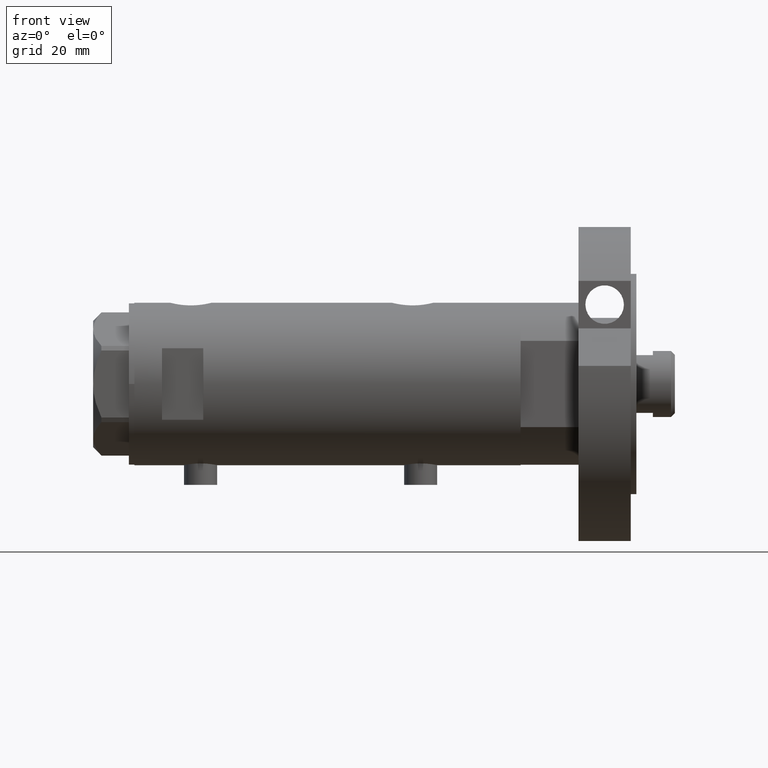
[diagram: clean part render]
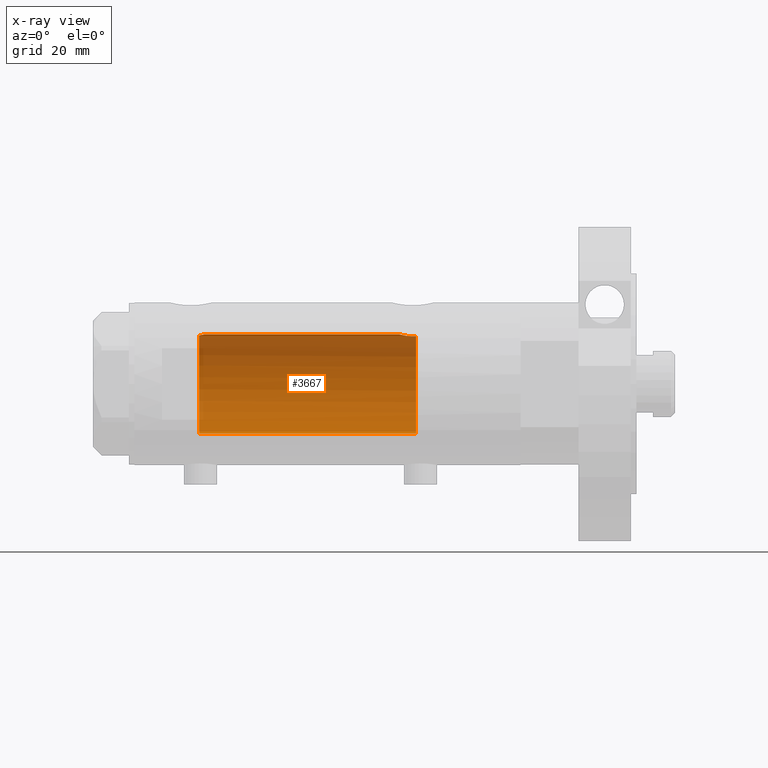
[diagram: x-ray — body ghosted, one internal face saturated and labeled with its STEP entity id]
A machine part, front view, then the same camera in x-ray: the body is ghosted and one INTERNAL B-rep face — a face not visible from any outside direction — is saturated and labeled: STEP entity #3667.
In plain terms, the highlighted cylindrical surface (partial cylindrical patch) has radius 18 mm, axis along (1, 0, -0).
Its self-contained STEP definition (entity closure, byte-faithful):
#47 = ORIENTED_EDGE ( 'NONE', *, *, #5833, .T. ) ;
#53 = DIRECTION ( 'NONE',  ( 1.000000000000000000, 0.000000000000000000, 0.000000000000000000 ) ) ;
#159 = CARTESIAN_POINT ( 'NONE',  ( 17.99716691696285409, 0.3685254503903831469, -26.04545042928659981 ) ) ;
#167 = ORIENTED_EDGE ( 'NONE', *, *, #2093, .T. ) ;
#193 = CARTESIAN_POINT ( 'NONE',  ( 17.33262691996380767, 4.855935766715060886, -31.37488940890202116 ) ) ;
#218 = CARTESIAN_POINT ( 'NONE',  ( 17.53642083926971651, 4.065376572064631766, -28.20260027543615777 ) ) ;
#251 = CARTESIAN_POINT ( 'NONE',  ( -18.00000000000000000, 0.000000000000000000, -32.09999999999998721 ) ) ;
#562 = ORIENTED_EDGE ( 'NONE', *, *, #5678, .F. ) ;
#652 = CARTESIAN_POINT ( 'NONE',  ( 17.33118376015917761, 4.861110225087390546, -30.63112109378173642 ) ) ;
#743 = CARTESIAN_POINT ( 'NONE',  ( 17.83051055968251219, 2.469307448774137104, -26.70420614498791778 ) ) ;
#786 = CARTESIAN_POINT ( 'NONE',  ( 17.95540531162507136, 1.279032093992328756, 44.90250861430337892 ) ) ;
#959 = B_SPLINE_CURVE_WITH_KNOTS ( 'NONE', 3,
 ( #1117, #3082, #159, #5845, #4918, #2597, #5908, #4378, #743, #2631, #4410, #2995, #4051, #5936, #2510, #218, #2108, #2048, #5817, #1585, #3463, #4886, #652, #2541, #193, #2084, #3985 ),
 .UNSPECIFIED., .F., .F.,
 ( 4, 2, 2, 2, 2, 2, 2, 2, 2, 2, 1, 2, 2, 4 ),
 ( 0.01528157848519460724, 0.01583467956029641077, 0.01638778063539821778, 0.01749398278560182138, 0.01804708386070362491, 0.01860018493580542845, 0.01915328601090723198, 0.01970638708600903552, 0.02081258923621265300, 0.02136569031131445653, 0.02191879138641626354, 0.02247189246151807054, 0.02302499353661987755, 0.02413119568682350197 ),
 .UNSPECIFIED. ) ;
#1074 = CARTESIAN_POINT ( 'NONE',  ( 0.000000000000000000, 0.000000000000000000, 70.09999999999999432 ) ) ;
#1117 = CARTESIAN_POINT ( 'NONE',  ( 18.00000000000000000, 5.958021437579254357E-16, -26.03499999999998948 ) ) ;
#1137 = CARTESIAN_POINT ( 'NONE',  ( 17.58783030962034388, 3.829911878881825160, 46.59999999999998721 ) ) ;
#1154 = DIRECTION ( 'NONE',  ( -0.000000000000000000, -0.000000000000000000, -1.000000000000000000 ) ) ;
#1307 = CARTESIAN_POINT ( 'NONE',  ( 18.00000000000000000, 0.000000000000000000, 44.73499999999999233 ) ) ;
#1334 = CARTESIAN_POINT ( 'NONE',  ( 17.89217382667230538, 1.974183297225218015, 45.14981302266163965 ) ) ;
#1482 = DIRECTION ( 'NONE',  ( 0.000000000000000000, 0.000000000000000000, 1.000000000000000000 ) ) ;
#1543 = EDGE_LOOP ( 'NONE', ( #2321, #3641, #167, #47, #5881, #562 ) ) ;
#1570 = CYLINDRICAL_SURFACE ( 'NONE', #5201, 18.00000000000000000 ) ;
#1585 = CARTESIAN_POINT ( 'NONE',  ( 17.38237957915197285, 4.675094569549008483, -29.54138980228257338 ) ) ;
#1680 = CARTESIAN_POINT ( 'NONE',  ( 18.00000000000000000, 2.204364238465235033E-15, 70.09999999999999432 ) ) ;
#1733 = CARTESIAN_POINT ( 'NONE',  ( 17.91007218376326193, 1.805463612197654166, 45.07866376881659676 ) ) ;
#1827 = CARTESIAN_POINT ( 'NONE',  ( 17.85293122918850273, 2.302201220737755794, 45.31031080804816469 ) ) ;
#2048 = CARTESIAN_POINT ( 'NONE',  ( 17.43128843254318028, 4.489613141718952427, -29.01700003713170162 ) ) ;
#2084 = CARTESIAN_POINT ( 'NONE',  ( 17.34671983132639284, 4.806279138776324622, -31.74012329268312271 ) ) ;
#2093 = EDGE_CURVE ( 'NONE', #6075, #3827, #5385, .T. ) ;
#2108 = CARTESIAN_POINT ( 'NONE',  ( 17.49030773641652914, 4.256160900234553957, -28.51469509681785652 ) ) ;
#2119 = CARTESIAN_POINT ( 'NONE',  ( -18.00000000000000000, 0.000000000000000000, 46.59999999999999432 ) ) ;
#2203 = CARTESIAN_POINT ( 'NONE',  ( 18.00000000000000000, 5.958021437579254357E-16, -26.03499999999998948 ) ) ;
#2321 = ORIENTED_EDGE ( 'NONE', *, *, #5294, .F. ) ;
#2332 = CARTESIAN_POINT ( 'NONE',  ( 17.83158514913445103, 2.461498934476296085, 45.39965995681277633 ) ) ;
#2364 = B_SPLINE_CURVE_WITH_KNOTS ( 'NONE', 3,
 ( #6071, #3656, #4082, #5017, #4606, #2332, #1827, #1334, #1733, #3711, #786, #4565, #4116, #3680 ),
 .UNSPECIFIED., .F., .F.,
 ( 4, 2, 2, 2, 2, 2, 4 ),
 ( 0.02614985543880328500, 0.02725214354003946404, 0.02780328759065755356, 0.02835443164127564308, 0.02890557569189372913, 0.02945671974251181865, 0.03055900784374799770 ),
 .UNSPECIFIED. ) ;
#2378 = DIRECTION ( 'NONE',  ( -1.000000000000000000, 0.000000000000000000, 0.000000000000000000 ) ) ;
#2467 = FACE_OUTER_BOUND ( 'NONE', #1543, .T. ) ;
#2510 = CARTESIAN_POINT ( 'NONE',  ( 17.61032289555864239, 3.726910670425180427, -27.76756985850230564 ) ) ;
#2541 = CARTESIAN_POINT ( 'NONE',  ( 17.32928165965088141, 4.867855194001449171, -30.81899018256649114 ) ) ;
#2597 = CARTESIAN_POINT ( 'NONE',  ( 17.94405978035183935, 1.463580074031385569, -26.24553017623723861 ) ) ;
#2631 = CARTESIAN_POINT ( 'NONE',  ( 17.78478726694684298, 2.779555353823086161, -26.90297143050465323 ) ) ;
#2658 = VECTOR ( 'NONE', #1154, 1000.000000000000000 ) ;
#2716 = AXIS2_PLACEMENT_3D ( 'NONE', #2924, #1482, #53 ) ;
#2748 = DIRECTION ( 'NONE',  ( -0.000000000000000000, -0.000000000000000000, -1.000000000000000000 ) ) ;
#2924 = CARTESIAN_POINT ( 'NONE',  ( 0.000000000000000000, 0.000000000000000000, 46.59999999999999432 ) ) ;
#2963 = DIRECTION ( 'NONE',  ( -1.000000000000000000, 0.000000000000000000, 0.000000000000000000 ) ) ;
#2995 = CARTESIAN_POINT ( 'NONE',  ( 17.71174132276681590, 3.211689381115077513, -27.24121359250870000 ) ) ;
#3082 = CARTESIAN_POINT ( 'NONE',  ( 17.99999999999999645, 0.1844036484100888829, -26.03499999999998238 ) ) ;
#3097 = VERTEX_POINT ( 'NONE', #251 ) ;
#3132 = AXIS2_PLACEMENT_3D ( 'NONE', #4973, #4854, #2963 ) ;
#3463 = CARTESIAN_POINT ( 'NONE',  ( 17.35631194664785681, 4.771042759406570077, -29.89667763205954287 ) ) ;
#3641 = ORIENTED_EDGE ( 'NONE', *, *, #4272, .F. ) ;
#3656 = CARTESIAN_POINT ( 'NONE',  ( 17.63704841537101231, 3.603891093161669890, 46.31145343596539732 ) ) ;
#3667 = ADVANCED_FACE ( 'NONE', ( #2467 ), #1570, .F. ) ;
#3680 = CARTESIAN_POINT ( 'NONE',  ( 18.00000000000000000, 0.000000000000000000, 44.73499999999999233 ) ) ;
#3711 = CARTESIAN_POINT ( 'NONE',  ( 17.94167814235965608, 1.458276351914867375, 44.95504464479716233 ) ) ;
#3827 = VERTEX_POINT ( 'NONE', #2119 ) ;
#3985 = CARTESIAN_POINT ( 'NONE',  ( 17.37157951943346745, 4.714681855650494136, -32.09999999999999432 ) ) ;
#4051 = CARTESIAN_POINT ( 'NONE',  ( 17.68656644271517209, 3.347025706529860312, -27.36453774950910045 ) ) ;
#4082 = CARTESIAN_POINT ( 'NONE',  ( 17.68814035493779357, 3.348626323852638365, 46.05183600219630335 ) ) ;
#4116 = CARTESIAN_POINT ( 'NONE',  ( 18.00000000000001066, 0.3728474842072352358, 44.73499999999999233 ) ) ;
#4142 = VECTOR ( 'NONE', #2748, 1000.000000000000000 ) ;
#4170 = LINE ( 'NONE', #5544, #4142 ) ;
#4272 = EDGE_CURVE ( 'NONE', #6075, #4310, #2364, .T. ) ;
#4310 = VERTEX_POINT ( 'NONE', #1307 ) ;
#4335 = DIRECTION ( 'NONE',  ( -0.000000000000000000, -0.000000000000000000, -1.000000000000000000 ) ) ;
#4378 = CARTESIAN_POINT ( 'NONE',  ( 17.85236636886077832, 2.306694554785103435, -26.61264586133006560 ) ) ;
#4410 = CARTESIAN_POINT ( 'NONE',  ( 17.76085061188610581, 2.927954048074872251, -27.01043039029092441 ) ) ;
#4429 = EDGE_CURVE ( 'NONE', #3097, #5628, #5510, .T. ) ;
#4565 = CARTESIAN_POINT ( 'NONE',  ( 17.98843015915091570, 0.7391836159806497442, 44.77731130524778536 ) ) ;
#4606 = CARTESIAN_POINT ( 'NONE',  ( 17.78617492856930227, 2.770629413254892537, 45.59682049650071178 ) ) ;
#4854 = DIRECTION ( 'NONE',  ( 0.000000000000000000, 0.000000000000000000, -1.000000000000000000 ) ) ;
#4886 = CARTESIAN_POINT ( 'NONE',  ( 17.34085862114803689, 4.826483754267692383, -30.26145238513612057 ) ) ;
#4918 = CARTESIAN_POINT ( 'NONE',  ( 17.97733715731490989, 0.9209699998971184742, -26.11935966604423243 ) ) ;
#4973 = CARTESIAN_POINT ( 'NONE',  ( 0.000000000000000000, 0.000000000000000000, -32.09999999999998721 ) ) ;
#5017 = CARTESIAN_POINT ( 'NONE',  ( 17.76196254920472128, 2.921230608637938264, 45.70535341986154521 ) ) ;
#5201 = AXIS2_PLACEMENT_3D ( 'NONE', #1074, #4335, #2378 ) ;
#5294 = EDGE_CURVE ( 'NONE', #4310, #5695, #5389, .T. ) ;
#5349 = CARTESIAN_POINT ( 'NONE',  ( 17.37157951943346745, 4.714681855650494136, -32.09999999999999432 ) ) ;
#5385 = CIRCLE ( 'NONE', #2716, 18.00000000000000000 ) ;
#5389 = LINE ( 'NONE', #1680, #2658 ) ;
#5510 = CIRCLE ( 'NONE', #3132, 18.00000000000000000 ) ;
#5544 = CARTESIAN_POINT ( 'NONE',  ( -18.00000000000000000, 0.000000000000000000, 70.09999999999999432 ) ) ;
#5628 = VERTEX_POINT ( 'NONE', #5349 ) ;
#5678 = EDGE_CURVE ( 'NONE', #5695, #5628, #959, .T. ) ;
#5695 = VERTEX_POINT ( 'NONE', #2203 ) ;
#5817 = CARTESIAN_POINT ( 'NONE',  ( 17.41328271218089796, 4.558641711475907243, -29.19087254718660418 ) ) ;
#5833 = EDGE_CURVE ( 'NONE', #3827, #3097, #4170, .T. ) ;
#5845 = CARTESIAN_POINT ( 'NONE',  ( 17.98587882862718601, 0.7362002489460850452, -26.08746722239206406 ) ) ;
#5881 = ORIENTED_EDGE ( 'NONE', *, *, #4429, .T. ) ;
#5908 = CARTESIAN_POINT ( 'NONE',  ( 17.91189082287941403, 1.809824880389074186, -26.36912370284670004 ) ) ;
#5936 = CARTESIAN_POINT ( 'NONE',  ( 17.63589737371339083, 3.604488512479873119, -27.62742655266249514 ) ) ;
#6071 = CARTESIAN_POINT ( 'NONE',  ( 17.58783030962034388, 3.829911878881825160, 46.59999999999998721 ) ) ;
#6075 = VERTEX_POINT ( 'NONE', #1137 ) ;